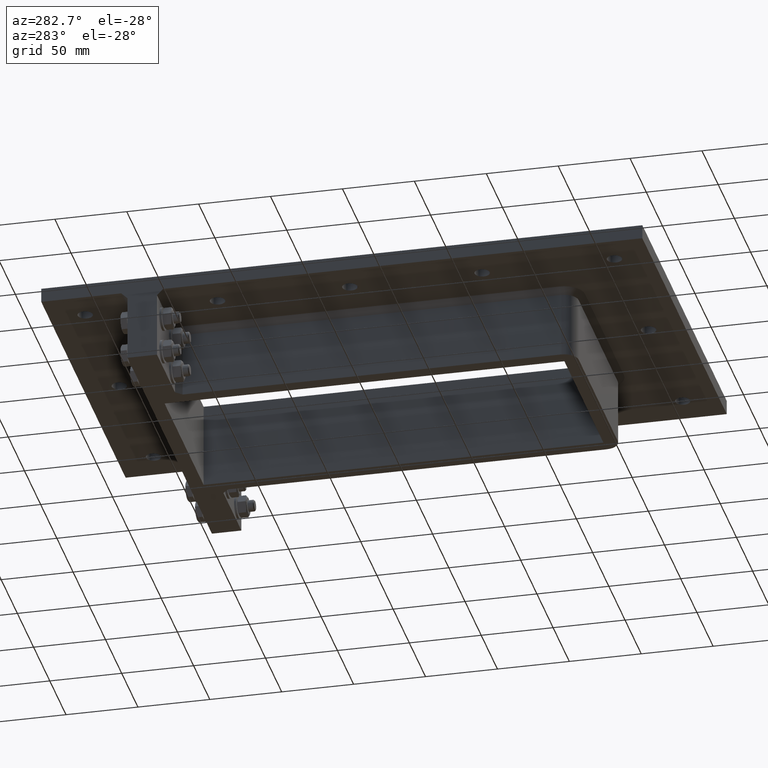
[diagram: clean part render]
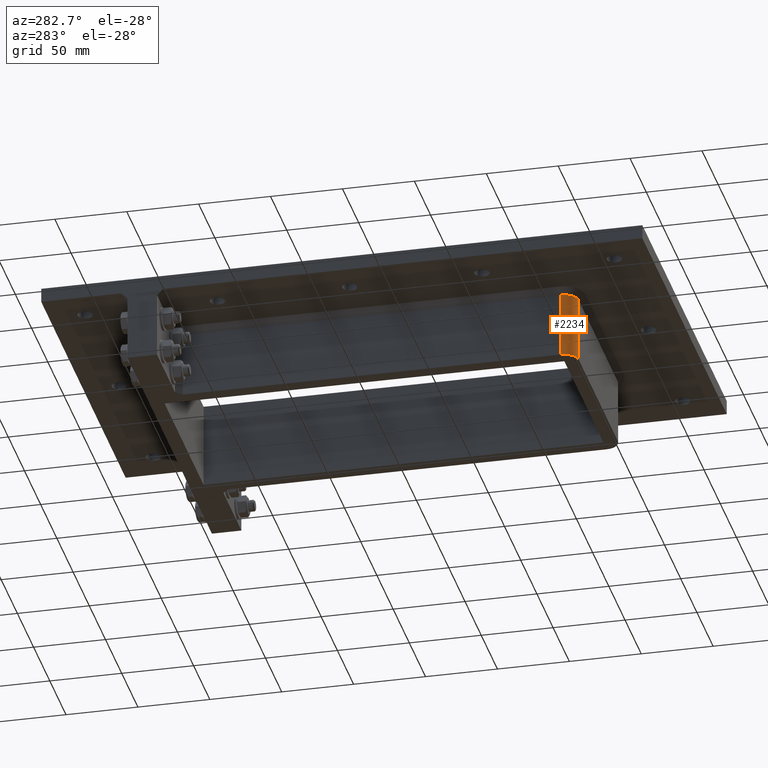
[diagram: same view with one face highlighted and labeled with its STEP entity id]
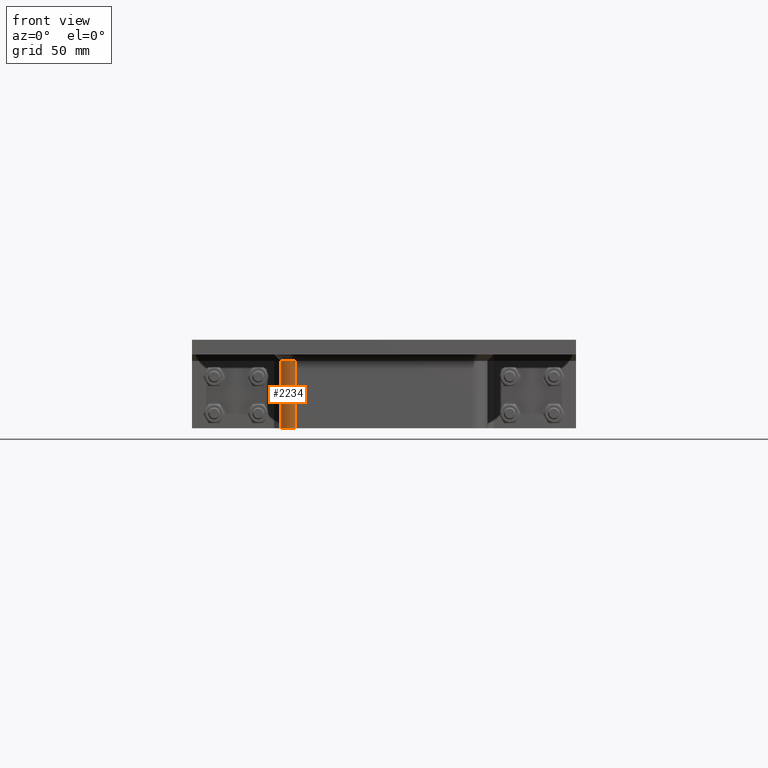
[diagram: same view with one face highlighted and labeled with its STEP entity id]
A machine part, auxiliary view. The second image highlights one B-rep face of the part: STEP entity #2234.
A second angle (front view) of the same face is appended — the face is thin or edge-on in the first view.
In plain terms, the highlighted cylindrical surface (edge-blend (fillet) strip) has radius 10 mm, axis along (0, 0, -1).
Its self-contained STEP definition (entity closure, byte-faithful):
#147=CYLINDRICAL_SURFACE('',#2567,10.);
#252=CIRCLE('',#2493,10.);
#280=CIRCLE('',#2539,10.);
#408=FACE_OUTER_BOUND('',#564,.T.);
#564=EDGE_LOOP('',(#1762,#1763,#1764,#1765));
#755=LINE('',#3619,#929);
#767=LINE('',#3645,#941);
#929=VECTOR('',#2944,10.);
#941=VECTOR('',#2984,10.);
#1049=VERTEX_POINT('',#3441);
#1051=VERTEX_POINT('',#3447);
#1099=VERTEX_POINT('',#3581);
#1100=VERTEX_POINT('',#3583);
#1249=EDGE_CURVE('',#1051,#1049,#252,.T.);
#1317=EDGE_CURVE('',#1099,#1100,#280,.T.);
#1336=EDGE_CURVE('',#1051,#1100,#755,.T.);
#1348=EDGE_CURVE('',#1049,#1099,#767,.T.);
#1762=ORIENTED_EDGE('',*,*,#1249,.F.);
#1763=ORIENTED_EDGE('',*,*,#1336,.T.);
#1764=ORIENTED_EDGE('',*,*,#1317,.F.);
#1765=ORIENTED_EDGE('',*,*,#1348,.F.);
#2234=ADVANCED_FACE('',(#408),#147,.T.);
#2493=AXIS2_PLACEMENT_3D('',#3449,#2773,#2774);
#2539=AXIS2_PLACEMENT_3D('',#3584,#2905,#2906);
#2567=AXIS2_PLACEMENT_3D('',#3644,#2982,#2983);
#2773=DIRECTION('center_axis',(0.,0.,1.));
#2774=DIRECTION('ref_axis',(-1.,0.,0.));
#2905=DIRECTION('center_axis',(0.,0.,-1.));
#2906=DIRECTION('ref_axis',(-1.,0.,0.));
#2944=DIRECTION('',(0.,0.,-1.));
#2982=DIRECTION('center_axis',(0.,0.,-1.));
#2983=DIRECTION('ref_axis',(-1.,0.,0.));
#2984=DIRECTION('',(0.,0.,-1.));
#3441=CARTESIAN_POINT('',(-60.25,-149.,-14.3));
#3447=CARTESIAN_POINT('',(-70.25,-139.,-14.3));
#3449=CARTESIAN_POINT('Origin',(-60.25,-139.,-14.3));
#3581=CARTESIAN_POINT('',(-60.25,-149.,-60.));
#3583=CARTESIAN_POINT('',(-70.25,-139.,-60.));
#3584=CARTESIAN_POINT('Origin',(-60.25,-139.,-60.));
#3619=CARTESIAN_POINT('',(-70.25,-139.,0.));
#3644=CARTESIAN_POINT('Origin',(-60.25,-139.,0.));
#3645=CARTESIAN_POINT('',(-60.25,-149.,0.));